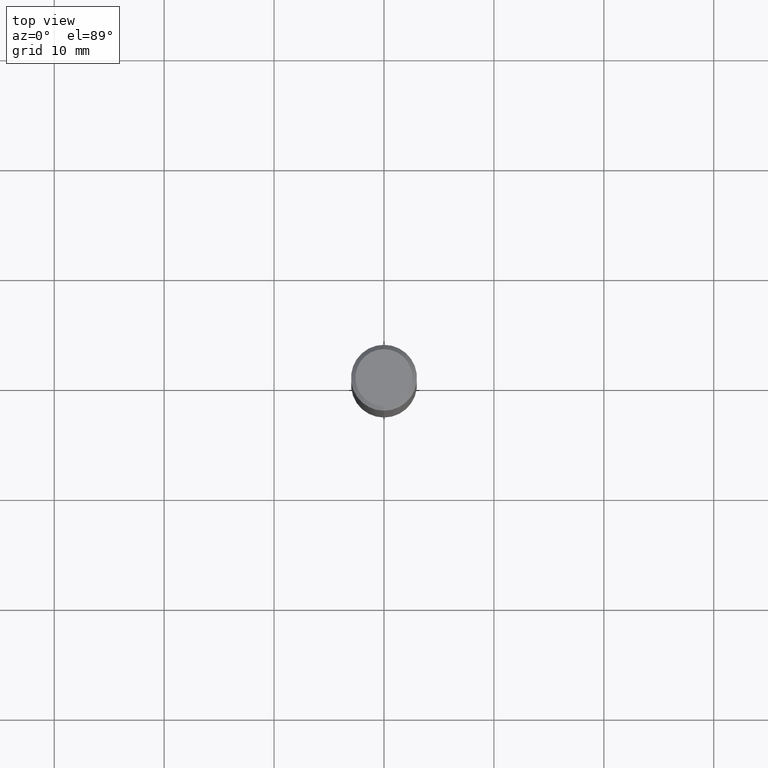
[diagram: clean part render]
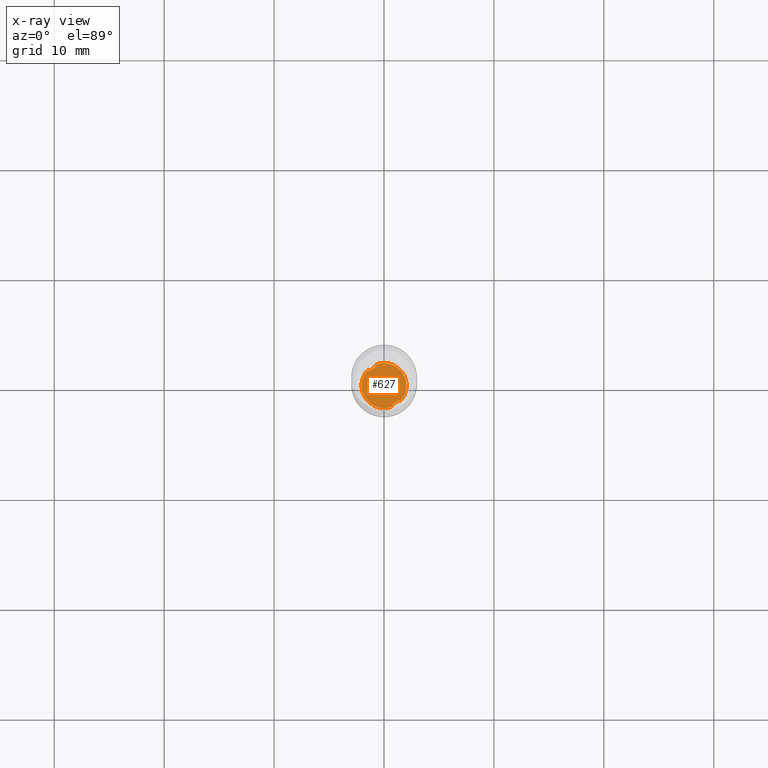
[diagram: x-ray — body ghosted, one internal face saturated and labeled with its STEP entity id]
A machine part, top view, then the same camera in x-ray: the body is ghosted and one INTERNAL B-rep face — a face not visible from any outside direction — is saturated and labeled: STEP entity #627.
In plain terms, the highlighted planar face has unit normal (-0, 0, 1).
Its self-contained STEP definition (entity closure, byte-faithful):
#277=VERTEX_POINT('',#784);
#285=VERTEX_POINT('',#793);
#327=VERTEX_POINT('',#837);
#329=VERTEX_POINT('',#839);
#351=EDGE_CURVE('',#383,#329,#863,.T.);
#381=EDGE_CURVE('',#383,#285,#896,.T.);
#383=VERTEX_POINT('',#898);
#459=VERTEX_POINT('',#983);
#467=EDGE_CURVE('',#327,#329,#991,.T.);
#509=EDGE_CURVE('',#459,#327,#1037,.T.);
#599=EDGE_CURVE('',#459,#277,#1132,.T.);
#627=ADVANCED_FACE('',(#1164),#1165,.T.);
#699=EDGE_CURVE('',#285,#277,#1247,.T.);
#784=CARTESIAN_POINT('',(-1.55174392582091,1.3394703425899,-42.0));
#793=CARTESIAN_POINT('',(2.51143975138682E-016,-2.0499,-42.0));
#837=CARTESIAN_POINT('',(-2.53261616584461E-016,2.0499,-42.0));
#839=CARTESIAN_POINT('',(1.55174392582091,-1.3394703425899,-42.0));
#863=B_SPLINE_CURVE_WITH_KNOTS('',3,(#1787,#1788,#1789,#1790,#1791,#1792,#1793,#1794,#1795,#1796,#1797,#1798),.UNSPECIFIED.,.F.,.F.,(4,2,2,2,2,4),(0.0,0.449610042895136,0.858237686662987,1.26696837206048,1.54516351120125,1.83638551522577),.UNSPECIFIED.);
#896=CIRCLE('',#2579,2.0499);
#898=CARTESIAN_POINT('',(0.7014191518289,-1.92616229416102,-42.0));
#983=CARTESIAN_POINT('',(-0.701419151828902,1.92616229416101,-42.0));
#991=CIRCLE('',#2949,2.0499);
#1037=CIRCLE('',#3785,2.0499);
#1132=B_SPLINE_CURVE_WITH_KNOTS('',3,(#4249,#4250,#4251,#4252,#4253,#4254,#4255,#4256,#4257,#4258,#4259,#4260),.UNSPECIFIED.,.F.,.F.,(4,2,2,2,2,4),(0.0,0.449610042895139,0.85823768666298,1.26696837206046,1.54516351120122,1.83638551522574),.UNSPECIFIED.);
#1164=FACE_OUTER_BOUND('',#4571,.T.);
#1165=PLANE('',#4572);
#1247=CIRCLE('',#4809,2.0499);
#1787=CARTESIAN_POINT('',(0.632954786753645,-2.0999,-42.0));
#1788=CARTESIAN_POINT('',(0.676991908212607,-1.95664584432065,-42.0));
#1789=CARTESIAN_POINT('',(0.746157595999636,-1.82340020425528,-41.9999999999928));
#1790=CARTESIAN_POINT('',(0.928529731990248,-1.60383499913714,-41.9999999999928));
#1791=CARTESIAN_POINT('',(1.03404559978867,-1.51820054699357,-42.0000000000004));
#1792=CARTESIAN_POINT('',(1.27483454786523,-1.39236415965557,-42.0000000000004));
#1793=CARTESIAN_POINT('',(1.405774857698,-1.35442030102367,-42.0));
#1794=CARTESIAN_POINT('',(1.63315657062803,-1.3310532090459,-42.0));
#1795=CARTESIAN_POINT('',(1.72600124785654,-1.33284815897477,-42.0));
#1796=CARTESIAN_POINT('',(1.91402259309768,-1.35709805194622,-42.0));
#1797=CARTESIAN_POINT('',(2.00852879729631,-1.38043363985365,-42.0));
#1798=CARTESIAN_POINT('',(2.0999,-1.41303999308154,-42.0));
#2579=AXIS2_PLACEMENT_3D('',#5508,#5509,#5510);
#2949=AXIS2_PLACEMENT_3D('',#5606,#5607,#5608);
#3785=AXIS2_PLACEMENT_3D('',#5664,#5665,#5666);
#4249=CARTESIAN_POINT('',(-0.632954786753646,2.0999,-42.0));
#4250=CARTESIAN_POINT('',(-0.676991908212609,1.95664584432065,-42.0));
#4251=CARTESIAN_POINT('',(-0.746157595999638,1.82340020425528,-41.9999999999928));
#4252=CARTESIAN_POINT('',(-0.928529731990248,1.60383499913714,-41.9999999999928));
#4253=CARTESIAN_POINT('',(-1.03404559978867,1.51820054699357,-42.0000000000004));
#4254=CARTESIAN_POINT('',(-1.27483454786523,1.39236415965557,-42.0000000000004));
#4255=CARTESIAN_POINT('',(-1.40577485769801,1.35442030102367,-42.0000000000001));
#4256=CARTESIAN_POINT('',(-1.63315657062803,1.3310532090459,-42.0000000000001));
#4257=CARTESIAN_POINT('',(-1.72600124785655,1.33284815897477,-42.0));
#4258=CARTESIAN_POINT('',(-1.91402259309768,1.35709805194622,-42.0));
#4259=CARTESIAN_POINT('',(-2.00852879729631,1.38043363985365,-42.0));
#4260=CARTESIAN_POINT('',(-2.0999,1.41303999308154,-42.0));
#4571=EDGE_LOOP('',(#5789,#5790,#5791,#5792,#5793,#5794));
#4572=AXIS2_PLACEMENT_3D('',#5795,#5796,#5797);
#4809=AXIS2_PLACEMENT_3D('',#5923,#5924,#5925);
#5508=CARTESIAN_POINT('',(0.0,0.0,-42.0));
#5509=DIRECTION('',(0.0,0.0,-1.0));
#5510=DIRECTION('',(0.0,1.0,0.0));
#5606=CARTESIAN_POINT('',(0.0,0.0,-42.0));
#5607=DIRECTION('',(0.0,0.0,-1.0));
#5608=DIRECTION('',(0.0,1.0,0.0));
#5664=CARTESIAN_POINT('',(0.0,0.0,-42.0));
#5665=DIRECTION('',(0.0,0.0,-1.0));
#5666=DIRECTION('',(0.0,1.0,0.0));
#5789=ORIENTED_EDGE('',*,*,#351,.T.);
#5790=ORIENTED_EDGE('',*,*,#467,.F.);
#5791=ORIENTED_EDGE('',*,*,#509,.F.);
#5792=ORIENTED_EDGE('',*,*,#599,.T.);
#5793=ORIENTED_EDGE('',*,*,#699,.F.);
#5794=ORIENTED_EDGE('',*,*,#381,.F.);
#5795=CARTESIAN_POINT('',(0.0,1.02495,-42.0));
#5796=DIRECTION('',(-0.0,0.0,1.0));
#5797=DIRECTION('',(0.0,-1.0,0.0));
#5923=CARTESIAN_POINT('',(0.0,0.0,-42.0));
#5924=DIRECTION('',(0.0,0.0,-1.0));
#5925=DIRECTION('',(0.0,1.0,0.0));